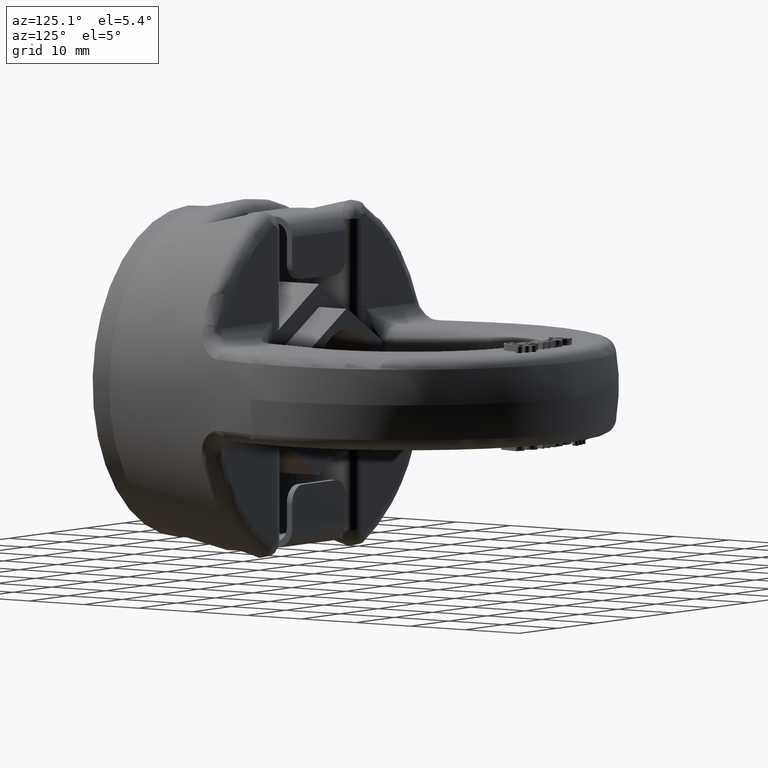
[diagram: clean part render]
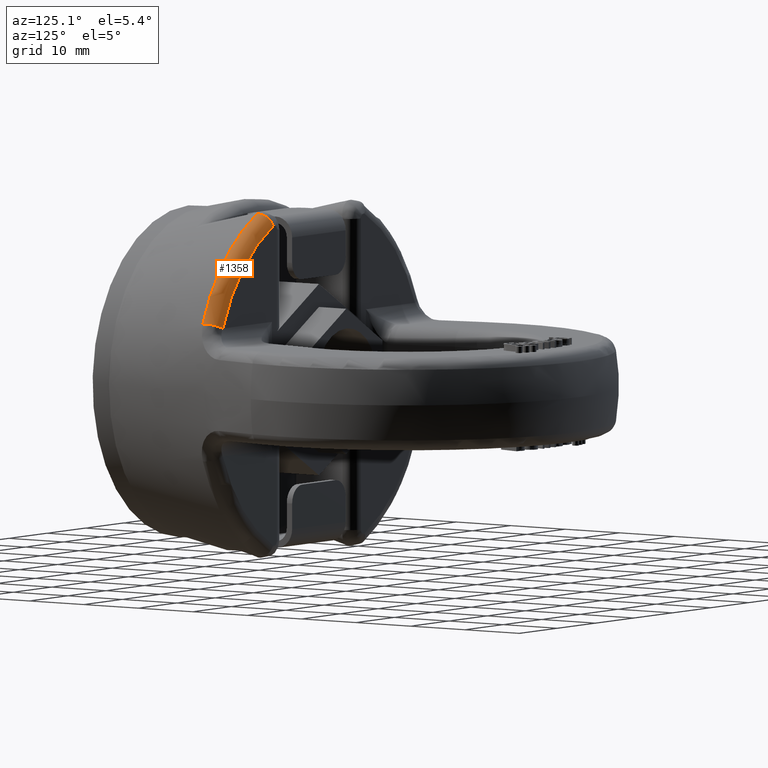
[diagram: same view with one face highlighted and labeled with its STEP entity id]
A machine part, auxiliary view. The second image highlights one B-rep face of the part: STEP entity #1358.
In plain terms, the highlighted toroidal blend (fillet) surface has major radius 26.9024 mm and minor (blend) radius 2 mm.
Its self-contained STEP definition (entity closure, byte-faithful):
#1017=TOROIDAL_SURFACE('',#5178,26.9024216943782,2.);
#1133=FACE_OUTER_BOUND('',#1877,.T.);
#1358=ADVANCED_FACE('',(#1133),#1017,.T.);
#1687=CIRCLE('',#5116,28.8606548450075);
#1698=CIRCLE('',#5133,26.9024216943782);
#1709=CIRCLE('',#5176,2.);
#1710=CIRCLE('',#5177,2.);
#1877=EDGE_LOOP('',(#2940,#2941,#2942,#2943));
#2940=ORIENTED_EDGE('',*,*,#4425,.T.);
#2941=ORIENTED_EDGE('',*,*,#4374,.F.);
#2942=ORIENTED_EDGE('',*,*,#4426,.F.);
#2943=ORIENTED_EDGE('',*,*,#4335,.F.);
#3949=VERTEX_POINT('',#6646);
#3950=VERTEX_POINT('',#6648);
#3985=VERTEX_POINT('',#6820);
#3986=VERTEX_POINT('',#6822);
#4335=EDGE_CURVE('',#3949,#3950,#1687,.T.);
#4374=EDGE_CURVE('',#3985,#3986,#1698,.T.);
#4425=EDGE_CURVE('',#3949,#3986,#1709,.T.);
#4426=EDGE_CURVE('',#3950,#3985,#1710,.T.);
#5116=AXIS2_PLACEMENT_3D('',#6647,#5442,#5443);
#5133=AXIS2_PLACEMENT_3D('',#6821,#5494,#5495);
#5176=AXIS2_PLACEMENT_3D('',#7084,#5602,#5603);
#5177=AXIS2_PLACEMENT_3D('',#7103,#5604,#5605);
#5178=AXIS2_PLACEMENT_3D('',#7104,#5606,#5607);
#5442=DIRECTION('',(0.,-1.,0.));
#5443=DIRECTION('',(0.,0.,-1.));
#5494=DIRECTION('',(0.,1.,0.));
#5495=DIRECTION('',(0.,0.,1.));
#5602=DIRECTION('',(-0.35932328979464,-2.2421932964456E-15,0.933213144684084));
#5603=DIRECTION('',(0.933213144684085,0.,0.35932328979464));
#5604=DIRECTION('',(-0.895803705758393,-7.47045010300816E-16,0.444449908031862));
#5605=DIRECTION('',(0.444449908031863,0.,0.895803705758393));
#5606=DIRECTION('',(0.,1.,0.));
#5607=DIRECTION('',(0.,0.,1.));
#6646=CARTESIAN_POINT('',(26.9331424655513,21.5934007774522,10.3703054445357));
#6647=CARTESIAN_POINT('',(-8.91941278754407E-14,21.5934007774522,0.));
#6648=CARTESIAN_POINT('',(12.8271153916028,21.5934007774522,25.8534815607717));
#6820=CARTESIAN_POINT('',(11.9567788479007,24.,24.099289047699));
#6821=CARTESIAN_POINT('',(-1.26684026347195E-13,24.,4.80935926062218E-14));
#6822=CARTESIAN_POINT('',(25.105693549028,24.,9.66666666666668));
#7084=CARTESIAN_POINT('',(25.105693549028,22.,9.66666666666668));
#7103=CARTESIAN_POINT('',(11.9567788479007,22.,24.099289047699));
#7104=CARTESIAN_POINT('',(-1.26684026347195E-13,22.,4.80935926062218E-14));